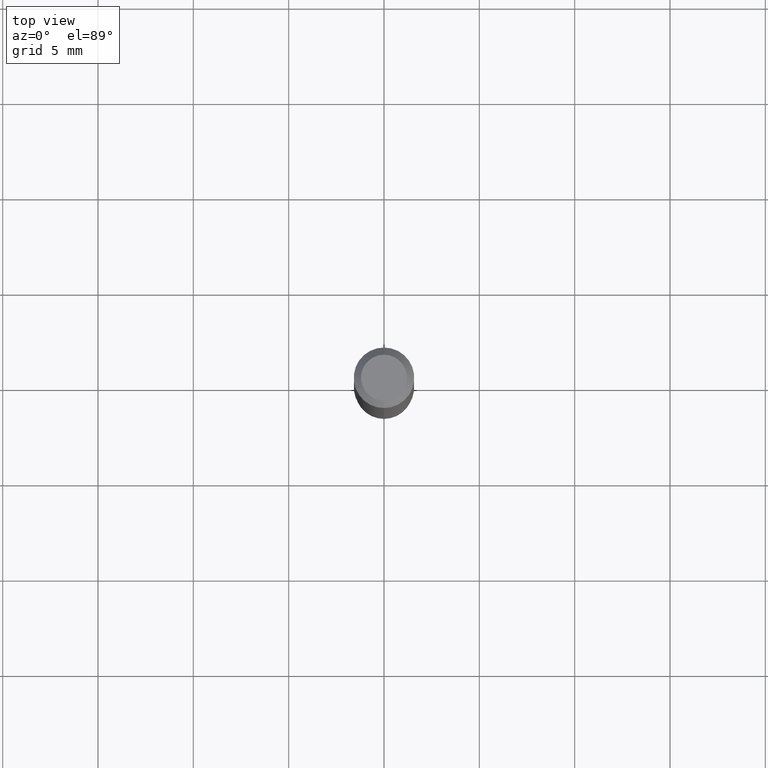
[diagram: clean part render]
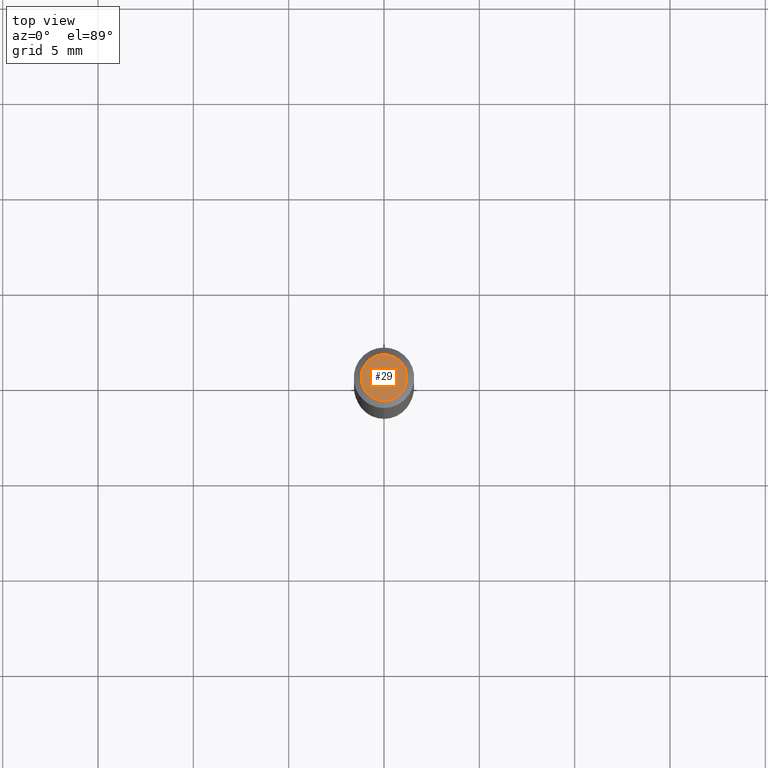
[diagram: same view with one face highlighted and labeled with its STEP entity id]
A machine part, top view. The second image highlights one B-rep face of the part: STEP entity #29.
In plain terms, the highlighted planar face has unit normal (0, -0, -1).
Its self-contained STEP definition (entity closure, byte-faithful):
#14 = PLANE ( 'NONE',  #305 ) ;
#27 = DIRECTION ( 'NONE',  ( -6.982962677686266711E-15, -1.000000000000000000, 3.491263859228568139E-15 ) ) ;
#29 = ADVANCED_FACE ( 'NONE', ( #248 ), #14, .F. ) ;
#78 = EDGE_CURVE ( 'NONE', #194, #476, #367, .T. ) ;
#87 = CARTESIAN_POINT ( 'NONE',  ( 3.840629472727447874E-16, 0.04749999999999999362, -1.747056831868805136E-16 ) ) ;
#114 = ORIENTED_EDGE ( 'NONE', *, *, #78, .T. ) ;
#136 = AXIS2_PLACEMENT_3D ( 'NONE', #459, #139, #181 ) ;
#137 = DIRECTION ( 'NONE',  ( -2.445620671388312549E-29, 3.491263859228567350E-15, 1.000000000000000000 ) ) ;
#139 = DIRECTION ( 'NONE',  ( -2.445620671388312549E-29, 3.491263859228567350E-15, 1.000000000000000000 ) ) ;
#181 = DIRECTION ( 'NONE',  ( -6.982962677686266711E-15, -1.000000000000000000, 3.491263859228568139E-15 ) ) ;
#194 = VERTEX_POINT ( 'NONE', #231 ) ;
#211 = CARTESIAN_POINT ( 'NONE',  ( 3.316907271900976096E-16, 0.04749999999999999362, -1.702703582501187023E-16 ) ) ;
#212 = DIRECTION ( 'NONE',  ( 6.982962677686265922E-15, 1.000000000000000000, -3.491263859228567350E-15 ) ) ;
#216 = CIRCLE ( 'NONE', #233, 0.04749999999999999362 ) ;
#224 = EDGE_LOOP ( 'NONE', ( #278, #114 ) ) ;
#231 = CARTESIAN_POINT ( 'NONE',  ( -3.773273898774340269E-16, -0.04749999999999999362, 1.569643834398333176E-16 ) ) ;
#233 = AXIS2_PLACEMENT_3D ( 'NONE', #382, #137, #27 ) ;
#248 = FACE_OUTER_BOUND ( 'NONE', #224, .T. ) ;
#278 = ORIENTED_EDGE ( 'NONE', *, *, #426, .T. ) ;
#305 = AXIS2_PLACEMENT_3D ( 'NONE', #211, #404, #212 ) ;
#367 = CIRCLE ( 'NONE', #136, 0.04749999999999999362 ) ;
#382 = CARTESIAN_POINT ( 'NONE',  ( 2.169424469933737165E-46, -3.096977931130331649E-32, -8.870649873523574904E-18 ) ) ;
#404 = DIRECTION ( 'NONE',  ( 2.445620671388311989E-29, -3.491263859228567350E-15, -1.000000000000000000 ) ) ;
#426 = EDGE_CURVE ( 'NONE', #476, #194, #216, .T. ) ;
#459 = CARTESIAN_POINT ( 'NONE',  ( 2.169424469933737165E-46, -3.096977931130331649E-32, -8.870649873523574904E-18 ) ) ;
#476 = VERTEX_POINT ( 'NONE', #87 ) ;